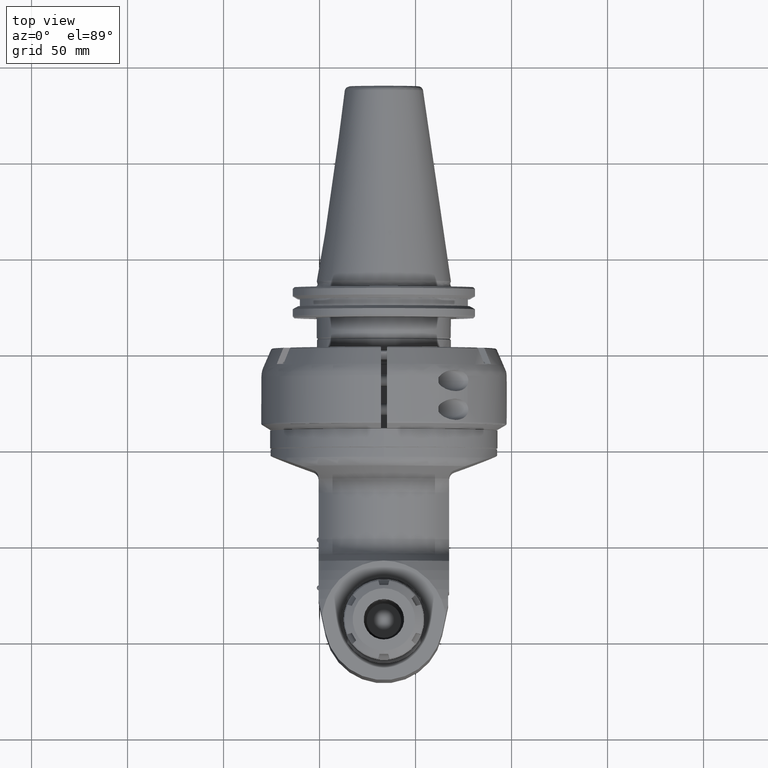
[diagram: clean part render]
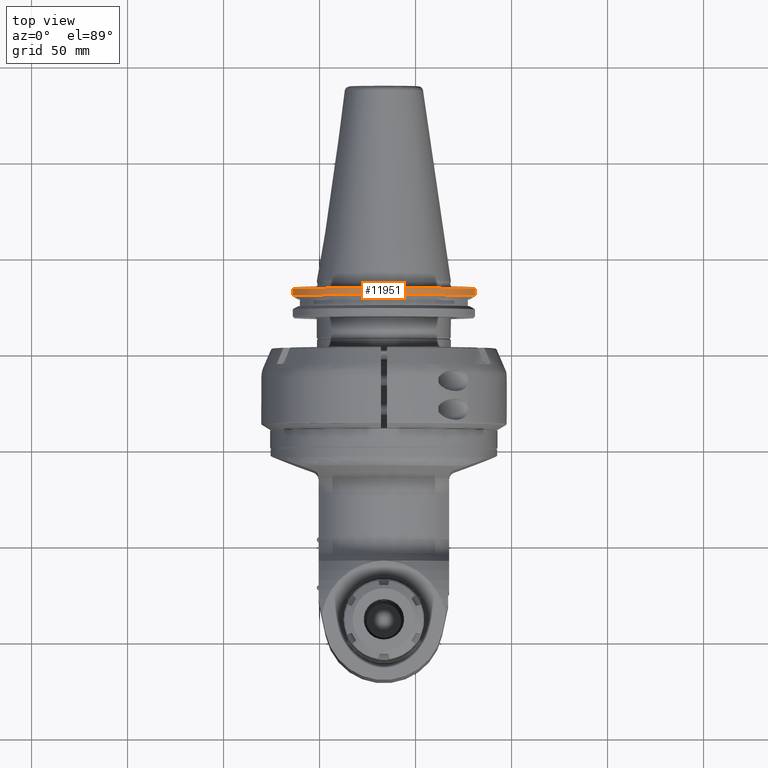
[diagram: same view with one face highlighted and labeled with its STEP entity id]
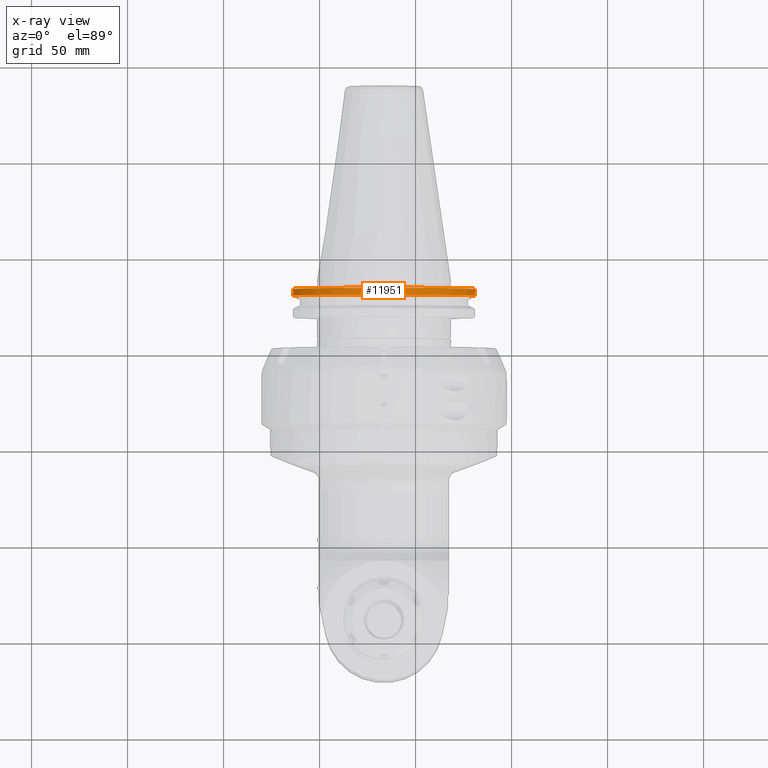
[diagram: x-ray of the same camera — body ghosted, the highlighted face saturated]
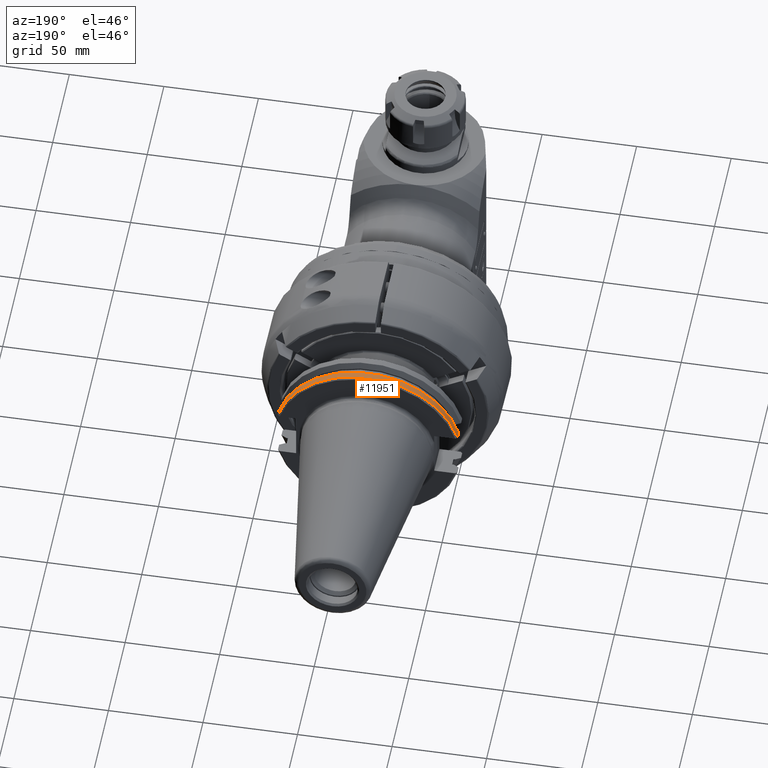
[diagram: same view with one face highlighted and labeled with its STEP entity id]
A machine part, top view. The second image highlights one B-rep face of the part: STEP entity #11951.
The next image is the same camera in x-ray: the body ghosted, the highlighted face saturated — about 0% of this face is hidden behind the body in this view.
A second angle (auxiliary view) of the same face is appended — the face is thin or edge-on in the first view.
In plain terms, the highlighted cylindrical surface (partial cylindrical patch) has radius 49.2125 mm, axis along (0, -1, 0).
Its self-contained STEP definition (entity closure, byte-faithful):
#641=CYLINDRICAL_SURFACE('',#13295,1.9375);
#1429=CIRCLE('',#13294,1.9375);
#1430=CIRCLE('',#13296,1.9375);
#2127=FACE_OUTER_BOUND('',#2922,.T.);
#2922=EDGE_LOOP('',(#10377,#10378,#10379,#10380));
#3661=LINE('',#23426,#4414);
#3668=LINE('',#23455,#4421);
#4414=VECTOR('',#16439,0.137296583894724);
#4421=VECTOR('',#16458,0.137296583894724);
#5514=VERTEX_POINT('',#23420);
#5516=VERTEX_POINT('',#23425);
#5525=VERTEX_POINT('',#23448);
#5526=VERTEX_POINT('',#23454);
#7170=EDGE_CURVE('',#5516,#5514,#3661,.T.);
#7182=EDGE_CURVE('',#5525,#5514,#1429,.T.);
#7183=EDGE_CURVE('',#5525,#5526,#3668,.T.);
#7184=EDGE_CURVE('',#5516,#5526,#1430,.T.);
#10377=ORIENTED_EDGE('',*,*,#7182,.F.);
#10378=ORIENTED_EDGE('',*,*,#7183,.T.);
#10379=ORIENTED_EDGE('',*,*,#7184,.F.);
#10380=ORIENTED_EDGE('',*,*,#7170,.T.);
#11951=ADVANCED_FACE('',(#2127),#641,.T.);
#13294=AXIS2_PLACEMENT_3D('',#23452,#16454,#16455);
#13295=AXIS2_PLACEMENT_3D('',#23453,#16456,#16457);
#13296=AXIS2_PLACEMENT_3D('',#23456,#16459,#16460);
#16439=DIRECTION('',(-1.426247169675E-14,-1.,-4.482491104692E-14));
#16454=DIRECTION('center_axis',(0.,-1.,0.));
#16455=DIRECTION('ref_axis',(0.964734250878399,0.,0.2632258064516));
#16456=DIRECTION('center_axis',(0.,-1.,0.));
#16457=DIRECTION('ref_axis',(0.,0.,1.));
#16458=DIRECTION('',(0.,1.,-1.731871563176E-14));
#16459=DIRECTION('center_axis',(0.,1.,0.));
#16460=DIRECTION('ref_axis',(0.,0.,1.));
#23420=CARTESIAN_POINT('',(-1.86917261107677,2.75000655662638,0.51));
#23425=CARTESIAN_POINT('',(-1.86917261107677,2.88730314052087,0.51));
#23426=CARTESIAN_POINT('',(-1.86917261107677,2.88730314052087,0.51));
#23448=CARTESIAN_POINT('',(1.86917261107677,2.75000655662638,0.51));
#23452=CARTESIAN_POINT('Origin',(0.,2.75000655662638,0.));
#23453=CARTESIAN_POINT('Origin',(0.,2.40266320916575,0.));
#23454=CARTESIAN_POINT('',(1.86917261107677,2.88730314052087,0.51));
#23455=CARTESIAN_POINT('',(1.86917261107677,2.75000655662638,0.51));
#23456=CARTESIAN_POINT('Origin',(0.,2.88730314052087,0.));